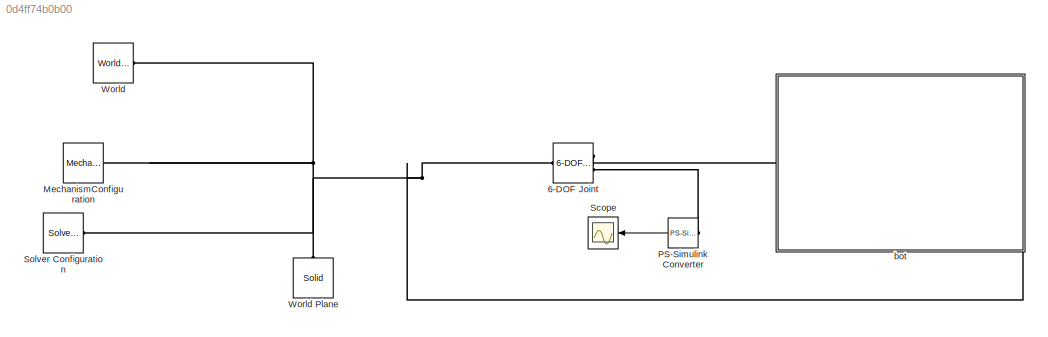
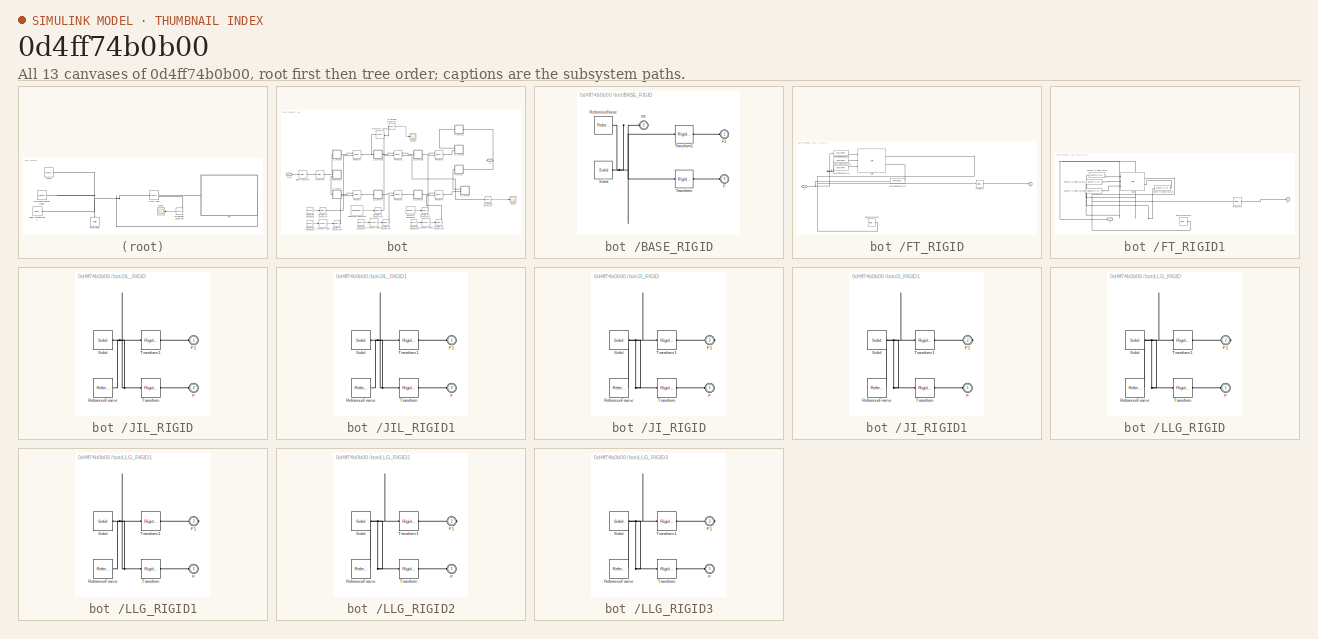
[diagram: thumbnail index - all 13 canvases of the model, root first then tree order]
MODEL slx_0d4ff74b0b00
KIND model
CONFIG AbsTol = 1e-6
CONFIG EnableMultiTasking = off
CONFIG FixedStep = 0.0001
CONFIG MaxStep = 1e-3
CONFIG MinStep = auto
CONFIG RelTol = 1e-5
CONFIG SampleTimeConstraint = Unconstrained
CONFIG Solver = ode15s
CONFIG SolverName = ode15s
CONFIG StartTime = 0.0
CONFIG StopTime = 10.0
WORKSPACE source: external: MAT-File  (data not in archive)
BLOCK [Reference] 6-DOF Joint  REF=sm_lib/Joints/6-DOF Joint
  Ports = [0, 0, 0, 0, 0, 1, 2]
  SourceBlock = sm_lib/Joints/6-DOF Joint
  SourceProductBaseCode = MS
  SourceProductName = Simscape Multibody
  SourceType = 6-DOF Joint
BLOCK [Reference] MechanismConfiguration  REF=sm_lib/Utilities/Mechanism
Configuration
  Ports = [0, 0, 0, 0, 0, 0, 1]
  SourceBlock = sm_lib/Utilities/Mechanism\nConfiguration
  SourceProductBaseCode = MS
  SourceProductName = Simscape Multibody
  SourceType = Mechanism\nConfiguration
BLOCK [Reference] PS-Simulink Converter  REF=nesl_utility/PS-Simulink
Converter
  Ports = [0, 1, 0, 0, 0, 1]
  SourceBlock = nesl_utility/PS-Simulink\nConverter
  SourceProductBaseCode = SS
  SourceProductName = Simscape
  SourceType = PS-Simulink\nConverter
BLOCK [Scope] Scope
  NumInputPorts = 1
  Ports = [1]
  ScopeSpecificationString = Simulink.scopes.TimeScopeBlockCfg('CurrentConfiguration', extmgr.ConfigurationSet(extmgr.Configuration('Core','General UI',true),extmgr.Configuration('Core','Source UI',true),extmgr.Configuration('Sources','WiredSimulink',true,'DataLoggingVariableName','ScopeData1'),extmgr.Configuration('Visuals','Time Domain',true,'SerializedDisplays',{struct('MinYLimReal','-2.59793','MaxYLimReal','0.87486','YLab...<+1380ch>
BLOCK [Reference] Solver Configuration  REF=nesl_utility/Solver
Configuration
  Ports = [0, 0, 0, 0, 0, 0, 1]
  SourceBlock = nesl_utility/Solver\nConfiguration
  SourceProductBaseCode = SS
  SourceProductName = Simscape
  SourceType = Solver\nConfiguration
BLOCK [Reference] World  REF=sm_lib/Frames and
Transforms/World Frame
  Ports = [0, 0, 0, 0, 0, 0, 1]
  SourceBlock = sm_lib/Frames and\nTransforms/World Frame
  SourceProductBaseCode = MS
  SourceProductName = Simscape Multibody
  SourceType = World Frame
BLOCK [Reference] World Plane  REF=sm_lib/Body Elements/Solid
  Ports = [0, 0, 0, 0, 0, 0, 1]
  SourceBlock = sm_lib/Body Elements/Solid
  SourceProductBaseCode = MS
  SourceProductName = Simscape Multibody
  SourceType = Solid
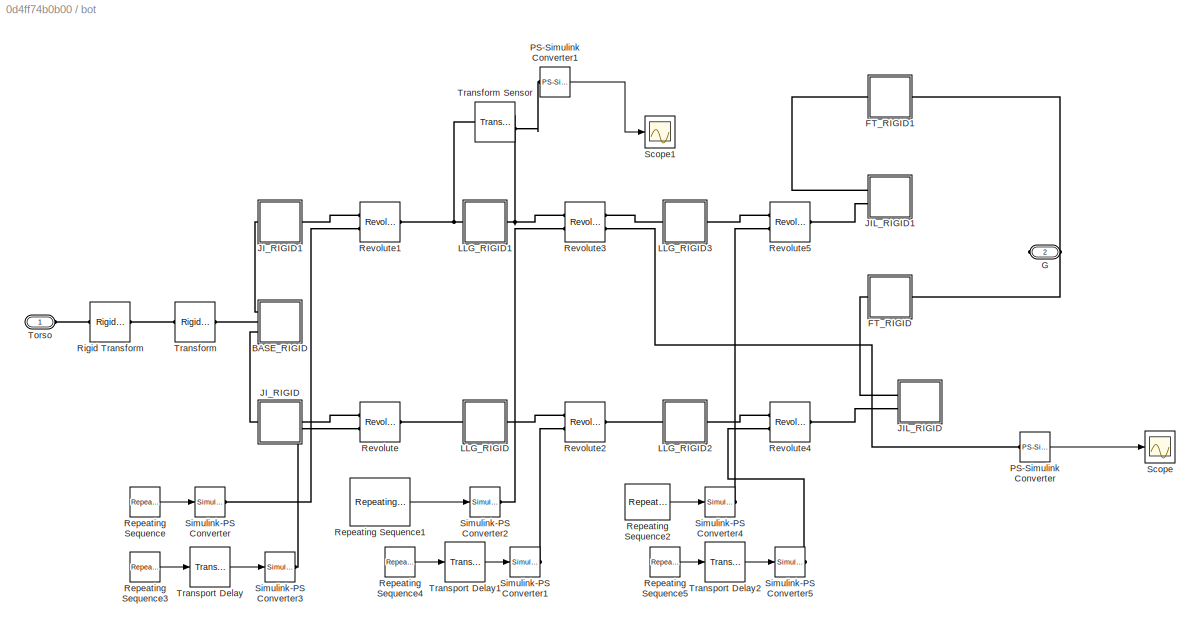
BLOCK [SubSystem] bot 
  Ports = [0, 0, 0, 0, 0, 1, 1]
  RequestExecContextInheritance = off
  Variant = off
BLOCK [SubSystem] bot /BASE_RIGID
  Ports = [0, 0, 0, 0, 0, 3]
  RequestExecContextInheritance = off
  Variant = off
BLOCK [PMIOPort] bot /BASE_RIGID/F
  Port = 3
  Side = Left
BLOCK [PMIOPort] bot /BASE_RIGID/F1
  Port = 1
  Side = Left
BLOCK [PMIOPort] bot /BASE_RIGID/F2
  Port = 2
  Side = Left
BLOCK [Reference] bot /BASE_RIGID/ReferenceFrame  REF=sm_lib/Frames and
Transforms/Reference
Frame
  Ports = [0, 0, 0, 0, 0, 0, 1]
  SourceBlock = sm_lib/Frames and\nTransforms/Reference\nFrame
  SourceProductBaseCode = MS
  SourceProductName = Simscape Multibody
  SourceType = Reference\nFrame
BLOCK [Reference] bot /BASE_RIGID/Solid  REF=sm_lib/Body Elements/Solid
  Ports = [0, 0, 0, 0, 0, 0, 1]
  SourceBlock = sm_lib/Body Elements/Solid
  SourceProductBaseCode = MS
  SourceProductName = Simscape Multibody
  SourceType = Solid
BLOCK [Reference] bot /BASE_RIGID/Transform  REF=sm_lib/Frames and
Transforms/Rigid
Transform
  Ports = [0, 0, 0, 0, 0, 1, 1]
  SourceBlock = sm_lib/Frames and\nTransforms/Rigid\nTransform
  SourceProductBaseCode = MS
  SourceProductName = Simscape Multibody
  SourceType = Rigid\nTransform
BLOCK [Reference] bot /BASE_RIGID/Transform1  REF=sm_lib/Frames and
Transforms/Rigid
Transform
  Ports = [0, 0, 0, 0, 0, 1, 1]
  SourceBlock = sm_lib/Frames and\nTransforms/Rigid\nTransform
  SourceProductBaseCode = MS
  SourceProductName = Simscape Multibody
  SourceType = Rigid\nTransform
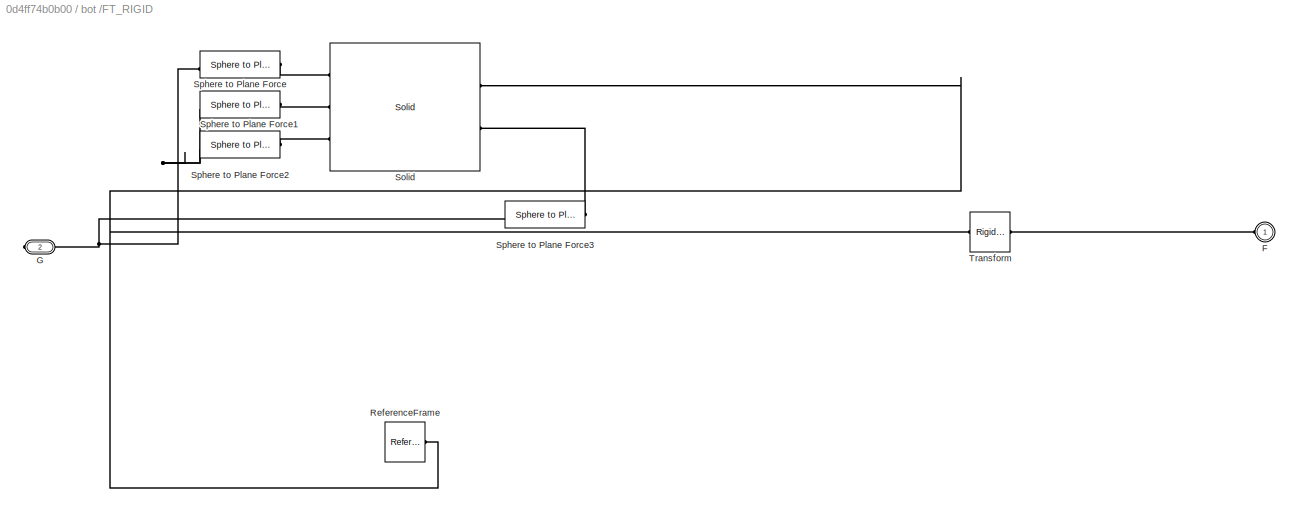
BLOCK [SubSystem] bot /FT_RIGID
  Ports = [0, 0, 0, 0, 0, 1, 1]
  RequestExecContextInheritance = off
  Variant = off
BLOCK [PMIOPort] bot /FT_RIGID/F
  Port = 1
  Side = Left
BLOCK [PMIOPort] bot /FT_RIGID/G
  Port = 2
  Side = Right
BLOCK [Reference] bot /FT_RIGID/ReferenceFrame  REF=sm_lib/Frames and
Transforms/Reference
Frame
  Ports = [0, 0, 0, 0, 0, 0, 1]
  SourceBlock = sm_lib/Frames and\nTransforms/Reference\nFrame
  SourceProductBaseCode = MS
  SourceProductName = Simscape Multibody
  SourceType = Reference\nFrame
BLOCK [Reference] bot /FT_RIGID/Solid  REF=sm_lib/Body Elements/Solid
  Ports = [0, 0, 0, 0, 0, 3, 2]
  SourceBlock = sm_lib/Body Elements/Solid
  SourceProductBaseCode = MS
  SourceProductName = Simscape Multibody
  SourceType = Solid
BLOCK [Reference] bot /FT_RIGID/Sphere to Plane Force  REF=Contact_Forces_Lib/3D/Sphere to Plane Force
  Ports = [0, 1, 0, 0, 0, 1, 1]
  SourceBlock = Contact_Forces_Lib/3D/Sphere to Plane Force
  SourceType = Sphere to Plane Force
BLOCK [Reference] bot /FT_RIGID/Sphere to Plane Force1  REF=Contact_Forces_Lib/3D/Sphere to Plane Force
  Ports = [0, 1, 0, 0, 0, 1, 1]
  SourceBlock = Contact_Forces_Lib/3D/Sphere to Plane Force
  SourceType = Sphere to Plane Force
BLOCK [Reference] bot /FT_RIGID/Sphere to Plane Force2  REF=Contact_Forces_Lib/3D/Sphere to Plane Force
  Ports = [0, 1, 0, 0, 0, 1, 1]
  SourceBlock = Contact_Forces_Lib/3D/Sphere to Plane Force
  SourceType = Sphere to Plane Force
BLOCK [Reference] bot /FT_RIGID/Sphere to Plane Force3  REF=Contact_Forces_Lib/3D/Sphere to Plane Force
  Ports = [0, 1, 0, 0, 0, 1, 1]
  SourceBlock = Contact_Forces_Lib/3D/Sphere to Plane Force
  SourceType = Sphere to Plane Force
BLOCK [Reference] bot /FT_RIGID/Transform  REF=sm_lib/Frames and
Transforms/Rigid
Transform
  Ports = [0, 0, 0, 0, 0, 1, 1]
  SourceBlock = sm_lib/Frames and\nTransforms/Rigid\nTransform
  SourceProductBaseCode = MS
  SourceProductName = Simscape Multibody
  SourceType = Rigid\nTransform
BLOCK [SubSystem] bot /FT_RIGID1
  Ports = [0, 0, 0, 0, 0, 1, 1]
  RequestExecContextInheritance = off
  Variant = off
BLOCK [PMIOPort] bot /FT_RIGID1/F
  Port = 1
  Side = Left
BLOCK [PMIOPort] bot /FT_RIGID1/G
  Port = 2
  Side = Right
BLOCK [Reference] bot /FT_RIGID1/ReferenceFrame  REF=sm_lib/Frames and
Transforms/Reference
Frame
  Ports = [0, 0, 0, 0, 0, 0, 1]
  SourceBlock = sm_lib/Frames and\nTransforms/Reference\nFrame
  SourceProductBaseCode = MS
  SourceProductName = Simscape Multibody
  SourceType = Reference\nFrame
BLOCK [Reference] bot /FT_RIGID1/Solid  REF=sm_lib/Body Elements/Solid
  Ports = [0, 0, 0, 0, 0, 3, 2]
  SourceBlock = sm_lib/Body Elements/Solid
  SourceProductBaseCode = MS
  SourceProductName = Simscape Multibody
  SourceType = Solid
BLOCK [Reference] bot /FT_RIGID1/Sphere to Plane Force  REF=Contact_Forces_Lib/3D/Sphere to Plane Force
  Ports = [0, 1, 0, 0, 0, 1, 1]
  SourceBlock = Contact_Forces_Lib/3D/Sphere to Plane Force
  SourceType = Sphere to Plane Force
BLOCK [Reference] bot /FT_RIGID1/Sphere to Plane Force1  REF=Contact_Forces_Lib/3D/Sphere to Plane Force
  Ports = [0, 1, 0, 0, 0, 1, 1]
  SourceBlock = Contact_Forces_Lib/3D/Sphere to Plane Force
  SourceType = Sphere to Plane Force
BLOCK [Reference] bot /FT_RIGID1/Sphere to Plane Force2  REF=Contact_Forces_Lib/3D/Sphere to Plane Force
  Ports = [0, 1, 0, 0, 0, 1, 1]
  SourceBlock = Contact_Forces_Lib/3D/Sphere to Plane Force
  SourceType = Sphere to Plane Force
BLOCK [Reference] bot /FT_RIGID1/Sphere to Plane Force3  REF=Contact_Forces_Lib/3D/Sphere to Plane Force
  Ports = [0, 1, 0, 0, 0, 1, 1]
  SourceBlock = Contact_Forces_Lib/3D/Sphere to Plane Force
  SourceType = Sphere to Plane Force
BLOCK [Reference] bot /FT_RIGID1/Transform  REF=sm_lib/Frames and
Transforms/Rigid
Transform
  Ports = [0, 0, 0, 0, 0, 1, 1]
  SourceBlock = sm_lib/Frames and\nTransforms/Rigid\nTransform
  SourceProductBaseCode = MS
  SourceProductName = Simscape Multibody
  SourceType = Rigid\nTransform
BLOCK [PMIOPort] bot /G
  Port = 2
  Side = Right
BLOCK [SubSystem] bot /JIL_RIGID
  Ports = [0, 0, 0, 0, 0, 2]
  RequestExecContextInheritance = off
  Variant = off
BLOCK [PMIOPort] bot /JIL_RIGID/F
  Port = 2
  Side = Left
BLOCK [PMIOPort] bot /JIL_RIGID/F1
  Port = 1
  Side = Left
BLOCK [Reference] bot /JIL_RIGID/ReferenceFrame  REF=sm_lib/Frames and
Transforms/Reference
Frame
  Ports = [0, 0, 0, 0, 0, 0, 1]
  SourceBlock = sm_lib/Frames and\nTransforms/Reference\nFrame
  SourceProductBaseCode = MS
  SourceProductName = Simscape Multibody
  SourceType = Reference\nFrame
BLOCK [Reference] bot /JIL_RIGID/Solid  REF=sm_lib/Body Elements/Solid
  Ports = [0, 0, 0, 0, 0, 0, 1]
  SourceBlock = sm_lib/Body Elements/Solid
  SourceProductBaseCode = MS
  SourceProductName = Simscape Multibody
  SourceType = Solid
BLOCK [Reference] bot /JIL_RIGID/Transform  REF=sm_lib/Frames and
Transforms/Rigid
Transform
  Ports = [0, 0, 0, 0, 0, 1, 1]
  SourceBlock = sm_lib/Frames and\nTransforms/Rigid\nTransform
  SourceProductBaseCode = MS
  SourceProductName = Simscape Multibody
  SourceType = Rigid\nTransform
BLOCK [Reference] bot /JIL_RIGID/Transform1  REF=sm_lib/Frames and
Transforms/Rigid
Transform
  Ports = [0, 0, 0, 0, 0, 1, 1]
  SourceBlock = sm_lib/Frames and\nTransforms/Rigid\nTransform
  SourceProductBaseCode = MS
  SourceProductName = Simscape Multibody
  SourceType = Rigid\nTransform
BLOCK [SubSystem] bot /JIL_RIGID1
  Ports = [0, 0, 0, 0, 0, 2]
  RequestExecContextInheritance = off
  Variant = off
BLOCK [PMIOPort] bot /JIL_RIGID1/F
  Port = 2
  Side = Left
BLOCK [PMIOPort] bot /JIL_RIGID1/F1
  Port = 1
  Side = Left
BLOCK [Reference] bot /JIL_RIGID1/ReferenceFrame  REF=sm_lib/Frames and
Transforms/Reference
Frame
  Ports = [0, 0, 0, 0, 0, 0, 1]
  SourceBlock = sm_lib/Frames and\nTransforms/Reference\nFrame
  SourceProductBaseCode = MS
  SourceProductName = Simscape Multibody
  SourceType = Reference\nFrame
BLOCK [Reference] bot /JIL_RIGID1/Solid  REF=sm_lib/Body Elements/Solid
  Ports = [0, 0, 0, 0, 0, 0, 1]
  SourceBlock = sm_lib/Body Elements/Solid
  SourceProductBaseCode = MS
  SourceProductName = Simscape Multibody
  SourceType = Solid
BLOCK [Reference] bot /JIL_RIGID1/Transform  REF=sm_lib/Frames and
Transforms/Rigid
Transform
  Ports = [0, 0, 0, 0, 0, 1, 1]
  SourceBlock = sm_lib/Frames and\nTransforms/Rigid\nTransform
  SourceProductBaseCode = MS
  SourceProductName = Simscape Multibody
  SourceType = Rigid\nTransform
BLOCK [Reference] bot /JIL_RIGID1/Transform1  REF=sm_lib/Frames and
Transforms/Rigid
Transform
  Ports = [0, 0, 0, 0, 0, 1, 1]
  SourceBlock = sm_lib/Frames and\nTransforms/Rigid\nTransform
  SourceProductBaseCode = MS
  SourceProductName = Simscape Multibody
  SourceType = Rigid\nTransform
BLOCK [SubSystem] bot /JI_RIGID
  Ports = [0, 0, 0, 0, 0, 1, 1]
  RequestExecContextInheritance = off
  Variant = off
BLOCK [PMIOPort] bot /JI_RIGID/F
  Port = 1
  Side = Left
BLOCK [PMIOPort] bot /JI_RIGID/F1
  Port = 2
  Side = Right
BLOCK [Reference] bot /JI_RIGID/ReferenceFrame  REF=sm_lib/Frames and
Transforms/Reference
Frame
  Ports = [0, 0, 0, 0, 0, 0, 1]
  SourceBlock = sm_lib/Frames and\nTransforms/Reference\nFrame
  SourceProductBaseCode = MS
  SourceProductName = Simscape Multibody
  SourceType = Reference\nFrame
BLOCK [Reference] bot /JI_RIGID/Solid  REF=sm_lib/Body Elements/Solid
  Ports = [0, 0, 0, 0, 0, 0, 1]
  SourceBlock = sm_lib/Body Elements/Solid
  SourceProductBaseCode = MS
  SourceProductName = Simscape Multibody
  SourceType = Solid
BLOCK [Reference] bot /JI_RIGID/Transform  REF=sm_lib/Frames and
Transforms/Rigid
Transform
  Ports = [0, 0, 0, 0, 0, 1, 1]
  SourceBlock = sm_lib/Frames and\nTransforms/Rigid\nTransform
  SourceProductBaseCode = MS
  SourceProductName = Simscape Multibody
  SourceType = Rigid\nTransform
BLOCK [Reference] bot /JI_RIGID/Transform1  REF=sm_lib/Frames and
Transforms/Rigid
Transform
  Ports = [0, 0, 0, 0, 0, 1, 1]
  SourceBlock = sm_lib/Frames and\nTransforms/Rigid\nTransform
  SourceProductBaseCode = MS
  SourceProductName = Simscape Multibody
  SourceType = Rigid\nTransform
BLOCK [SubSystem] bot /JI_RIGID1
  Ports = [0, 0, 0, 0, 0, 1, 1]
  RequestExecContextInheritance = off
  Variant = off
BLOCK [PMIOPort] bot /JI_RIGID1/F
  Port = 1
  Side = Left
BLOCK [PMIOPort] bot /JI_RIGID1/F1
  Port = 2
  Side = Right
BLOCK [Reference] bot /JI_RIGID1/ReferenceFrame  REF=sm_lib/Frames and
Transforms/Reference
Frame
  Ports = [0, 0, 0, 0, 0, 0, 1]
  SourceBlock = sm_lib/Frames and\nTransforms/Reference\nFrame
  SourceProductBaseCode = MS
  SourceProductName = Simscape Multibody
  SourceType = Reference\nFrame
BLOCK [Reference] bot /JI_RIGID1/Solid  REF=sm_lib/Body Elements/Solid
  Ports = [0, 0, 0, 0, 0, 0, 1]
  SourceBlock = sm_lib/Body Elements/Solid
  SourceProductBaseCode = MS
  SourceProductName = Simscape Multibody
  SourceType = Solid
BLOCK [Reference] bot /JI_RIGID1/Transform  REF=sm_lib/Frames and
Transforms/Rigid
Transform
  Ports = [0, 0, 0, 0, 0, 1, 1]
  SourceBlock = sm_lib/Frames and\nTransforms/Rigid\nTransform
  SourceProductBaseCode = MS
  SourceProductName = Simscape Multibody
  SourceType = Rigid\nTransform
BLOCK [Reference] bot /JI_RIGID1/Transform1  REF=sm_lib/Frames and
Transforms/Rigid
Transform
  Ports = [0, 0, 0, 0, 0, 1, 1]
  SourceBlock = sm_lib/Frames and\nTransforms/Rigid\nTransform
  SourceProductBaseCode = MS
  SourceProductName = Simscape Multibody
  SourceType = Rigid\nTransform
BLOCK [SubSystem] bot /LLG_RIGID
  Ports = [0, 0, 0, 0, 0, 1, 1]
  RequestExecContextInheritance = off
  Variant = off
BLOCK [PMIOPort] bot /LLG_RIGID/F
  Port = 1
  Side = Left
BLOCK [PMIOPort] bot /LLG_RIGID/F1
  Port = 2
  Side = Right
BLOCK [Reference] bot /LLG_RIGID/ReferenceFrame  REF=sm_lib/Frames and
Transforms/Reference
Frame
  Ports = [0, 0, 0, 0, 0, 0, 1]
  SourceBlock = sm_lib/Frames and\nTransforms/Reference\nFrame
  SourceProductBaseCode = MS
  SourceProductName = Simscape Multibody
  SourceType = Reference\nFrame
BLOCK [Reference] bot /LLG_RIGID/Solid  REF=sm_lib/Body Elements/Solid
  Ports = [0, 0, 0, 0, 0, 0, 1]
  SourceBlock = sm_lib/Body Elements/Solid
  SourceProductBaseCode = MS
  SourceProductName = Simscape Multibody
  SourceType = Solid
BLOCK [Reference] bot /LLG_RIGID/Transform  REF=sm_lib/Frames and
Transforms/Rigid
Transform
  Ports = [0, 0, 0, 0, 0, 1, 1]
  SourceBlock = sm_lib/Frames and\nTransforms/Rigid\nTransform
  SourceProductBaseCode = MS
  SourceProductName = Simscape Multibody
  SourceType = Rigid\nTransform
BLOCK [Reference] bot /LLG_RIGID/Transform1  REF=sm_lib/Frames and
Transforms/Rigid
Transform
  Ports = [0, 0, 0, 0, 0, 1, 1]
  SourceBlock = sm_lib/Frames and\nTransforms/Rigid\nTransform
  SourceProductBaseCode = MS
  SourceProductName = Simscape Multibody
  SourceType = Rigid\nTransform
BLOCK [SubSystem] bot /LLG_RIGID1
  Ports = [0, 0, 0, 0, 0, 1, 1]
  RequestExecContextInheritance = off
  Variant = off
BLOCK [PMIOPort] bot /LLG_RIGID1/F
  Port = 1
  Side = Left
BLOCK [PMIOPort] bot /LLG_RIGID1/F1
  Port = 2
  Side = Right
BLOCK [Reference] bot /LLG_RIGID1/ReferenceFrame  REF=sm_lib/Frames and
Transforms/Reference
Frame
  Ports = [0, 0, 0, 0, 0, 0, 1]
  SourceBlock = sm_lib/Frames and\nTransforms/Reference\nFrame
  SourceProductBaseCode = MS
  SourceProductName = Simscape Multibody
  SourceType = Reference\nFrame
BLOCK [Reference] bot /LLG_RIGID1/Solid  REF=sm_lib/Body Elements/Solid
  Ports = [0, 0, 0, 0, 0, 0, 1]
  SourceBlock = sm_lib/Body Elements/Solid
  SourceProductBaseCode = MS
  SourceProductName = Simscape Multibody
  SourceType = Solid
BLOCK [Reference] bot /LLG_RIGID1/Transform  REF=sm_lib/Frames and
Transforms/Rigid
Transform
  Ports = [0, 0, 0, 0, 0, 1, 1]
  SourceBlock = sm_lib/Frames and\nTransforms/Rigid\nTransform
  SourceProductBaseCode = MS
  SourceProductName = Simscape Multibody
  SourceType = Rigid\nTransform
BLOCK [Reference] bot /LLG_RIGID1/Transform1  REF=sm_lib/Frames and
Transforms/Rigid
Transform
  Ports = [0, 0, 0, 0, 0, 1, 1]
  SourceBlock = sm_lib/Frames and\nTransforms/Rigid\nTransform
  SourceProductBaseCode = MS
  SourceProductName = Simscape Multibody
  SourceType = Rigid\nTransform
BLOCK [SubSystem] bot /LLG_RIGID2
  Ports = [0, 0, 0, 0, 0, 1, 1]
  RequestExecContextInheritance = off
  Variant = off
BLOCK [PMIOPort] bot /LLG_RIGID2/F
  Port = 1
  Side = Left
BLOCK [PMIOPort] bot /LLG_RIGID2/F1
  Port = 2
  Side = Right
BLOCK [Reference] bot /LLG_RIGID2/ReferenceFrame  REF=sm_lib/Frames and
Transforms/Reference
Frame
  Ports = [0, 0, 0, 0, 0, 0, 1]
  SourceBlock = sm_lib/Frames and\nTransforms/Reference\nFrame
  SourceProductBaseCode = MS
  SourceProductName = Simscape Multibody
  SourceType = Reference\nFrame
BLOCK [Reference] bot /LLG_RIGID2/Solid  REF=sm_lib/Body Elements/Solid
  Ports = [0, 0, 0, 0, 0, 0, 1]
  SourceBlock = sm_lib/Body Elements/Solid
  SourceProductBaseCode = MS
  SourceProductName = Simscape Multibody
  SourceType = Solid
BLOCK [Reference] bot /LLG_RIGID2/Transform  REF=sm_lib/Frames and
Transforms/Rigid
Transform
  Ports = [0, 0, 0, 0, 0, 1, 1]
  SourceBlock = sm_lib/Frames and\nTransforms/Rigid\nTransform
  SourceProductBaseCode = MS
  SourceProductName = Simscape Multibody
  SourceType = Rigid\nTransform
BLOCK [Reference] bot /LLG_RIGID2/Transform1  REF=sm_lib/Frames and
Transforms/Rigid
Transform
  Ports = [0, 0, 0, 0, 0, 1, 1]
  SourceBlock = sm_lib/Frames and\nTransforms/Rigid\nTransform
  SourceProductBaseCode = MS
  SourceProductName = Simscape Multibody
  SourceType = Rigid\nTransform
BLOCK [SubSystem] bot /LLG_RIGID3
  Ports = [0, 0, 0, 0, 0, 1, 1]
  RequestExecContextInheritance = off
  Variant = off
BLOCK [PMIOPort] bot /LLG_RIGID3/F
  Port = 1
  Side = Left
BLOCK [PMIOPort] bot /LLG_RIGID3/F1
  Port = 2
  Side = Right
BLOCK [Reference] bot /LLG_RIGID3/ReferenceFrame  REF=sm_lib/Frames and
Transforms/Reference
Frame
  Ports = [0, 0, 0, 0, 0, 0, 1]
  SourceBlock = sm_lib/Frames and\nTransforms/Reference\nFrame
  SourceProductBaseCode = MS
  SourceProductName = Simscape Multibody
  SourceType = Reference\nFrame
BLOCK [Reference] bot /LLG_RIGID3/Solid  REF=sm_lib/Body Elements/Solid
  Ports = [0, 0, 0, 0, 0, 0, 1]
  SourceBlock = sm_lib/Body Elements/Solid
  SourceProductBaseCode = MS
  SourceProductName = Simscape Multibody
  SourceType = Solid
BLOCK [Reference] bot /LLG_RIGID3/Transform  REF=sm_lib/Frames and
Transforms/Rigid
Transform
  Ports = [0, 0, 0, 0, 0, 1, 1]
  SourceBlock = sm_lib/Frames and\nTransforms/Rigid\nTransform
  SourceProductBaseCode = MS
  SourceProductName = Simscape Multibody
  SourceType = Rigid\nTransform
BLOCK [Reference] bot /LLG_RIGID3/Transform1  REF=sm_lib/Frames and
Transforms/Rigid
Transform
  Ports = [0, 0, 0, 0, 0, 1, 1]
  SourceBlock = sm_lib/Frames and\nTransforms/Rigid\nTransform
  SourceProductBaseCode = MS
  SourceProductName = Simscape Multibody
  SourceType = Rigid\nTransform
BLOCK [Reference] bot /PS-Simulink Converter  REF=nesl_utility/PS-Simulink
Converter
  Ports = [0, 1, 0, 0, 0, 1]
  SourceBlock = nesl_utility/PS-Simulink\nConverter
  SourceProductBaseCode = SS
  SourceProductName = Simscape
  SourceType = PS-Simulink\nConverter
BLOCK [Reference] bot /PS-Simulink Converter1  REF=nesl_utility/PS-Simulink
Converter
  Commented = on
  Ports = [0, 1, 0, 0, 0, 1]
  SourceBlock = nesl_utility/PS-Simulink\nConverter
  SourceProductBaseCode = SS
  SourceProductName = Simscape
  SourceType = PS-Simulink\nConverter
BLOCK [Reference] bot /Repeating Sequence  REF=simulink/Sources/Repeating
Sequence
  Ports = [0, 1]
  SourceBlock = simulink/Sources/Repeating\nSequence
  SourceProductBaseCode = SL
  SourceProductName = Simulink
  SourceType = Repeating table
BLOCK [Reference] bot /Repeating Sequence1  REF=simulink/Sources/Repeating
Sequence
  Ports = [0, 1]
  SourceBlock = simulink/Sources/Repeating\nSequence
  SourceProductBaseCode = SL
  SourceProductName = Simulink
  SourceType = Repeating table
BLOCK [Reference] bot /Repeating Sequence2  REF=simulink/Sources/Repeating
Sequence
  Ports = [0, 1]
  SourceBlock = simulink/Sources/Repeating\nSequence
  SourceProductBaseCode = SL
  SourceProductName = Simulink
  SourceType = Repeating table
BLOCK [Reference] bot /Repeating Sequence3  REF=simulink/Sources/Repeating
Sequence
  Ports = [0, 1]
  SourceBlock = simulink/Sources/Repeating\nSequence
  SourceProductBaseCode = SL
  SourceProductName = Simulink
  SourceType = Repeating table
BLOCK [Reference] bot /Repeating Sequence4  REF=simulink/Sources/Repeating
Sequence
  Ports = [0, 1]
  SourceBlock = simulink/Sources/Repeating\nSequence
  SourceProductBaseCode = SL
  SourceProductName = Simulink
  SourceType = Repeating table
BLOCK [Reference] bot /Repeating Sequence5  REF=simulink/Sources/Repeating
Sequence
  Ports = [0, 1]
  SourceBlock = simulink/Sources/Repeating\nSequence
  SourceProductBaseCode = SL
  SourceProductName = Simulink
  SourceType = Repeating table
BLOCK [Reference] bot /Revolute  REF=sm_lib/Joints/Revolute Joint
  Ports = [0, 0, 0, 0, 0, 2, 1]
  SourceBlock = sm_lib/Joints/Revolute Joint
  SourceProductBaseCode = MS
  SourceProductName = Simscape Multibody
  SourceType = Revolute Joint
BLOCK [Reference] bot /Revolute1  REF=sm_lib/Joints/Revolute Joint
  Ports = [0, 0, 0, 0, 0, 2, 1]
  SourceBlock = sm_lib/Joints/Revolute Joint
  SourceProductBaseCode = MS
  SourceProductName = Simscape Multibody
  SourceType = Revolute Joint
BLOCK [Reference] bot /Revolute2  REF=sm_lib/Joints/Revolute Joint
  Ports = [0, 0, 0, 0, 0, 2, 1]
  SourceBlock = sm_lib/Joints/Revolute Joint
  SourceProductBaseCode = MS
  SourceProductName = Simscape Multibody
  SourceType = Revolute Joint
BLOCK [Reference] bot /Revolute3  REF=sm_lib/Joints/Revolute Joint
  Ports = [0, 0, 0, 0, 0, 2, 2]
  SourceBlock = sm_lib/Joints/Revolute Joint
  SourceProductBaseCode = MS
  SourceProductName = Simscape Multibody
  SourceType = Revolute Joint
BLOCK [Reference] bot /Revolute4  REF=sm_lib/Joints/Revolute Joint
  Ports = [0, 0, 0, 0, 0, 2, 1]
  SourceBlock = sm_lib/Joints/Revolute Joint
  SourceProductBaseCode = MS
  SourceProductName = Simscape Multibody
  SourceType = Revolute Joint
BLOCK [Reference] bot /Revolute5  REF=sm_lib/Joints/Revolute Joint
  Ports = [0, 0, 0, 0, 0, 2, 1]
  SourceBlock = sm_lib/Joints/Revolute Joint
  SourceProductBaseCode = MS
  SourceProductName = Simscape Multibody
  SourceType = Revolute Joint
BLOCK [Reference] bot /Rigid Transform  REF=sm_lib/Frames and
Transforms/Rigid
Transform
  Ports = [0, 0, 0, 0, 0, 1, 1]
  SourceBlock = sm_lib/Frames and\nTransforms/Rigid\nTransform
  SourceProductBaseCode = MS
  SourceProductName = Simscape Multibody
  SourceType = Rigid\nTransform
BLOCK [Scope] bot /Scope
  NumInputPorts = 1
  Ports = [1]
  ScopeSpecificationString = Simulink.scopes.TimeScopeBlockCfg('CurrentConfiguration', extmgr.ConfigurationSet(extmgr.Configuration('Core','General UI',true),extmgr.Configuration('Core','Source UI',true),extmgr.Configuration('Sources','WiredSimulink',true),extmgr.Configuration('Visuals','Time Domain',true,'SerializedDisplays',{struct('MinYLimReal','-11465764908.79377','MaxYLimReal','46839913215.40419','YLabelReal','','MinYLim...<+1473ch>
BLOCK [Scope] bot /Scope1
  Commented = on
  NumInputPorts = 1
  Ports = [1]
  ScopeSpecificationString = Simulink.scopes.TimeScopeBlockCfg('CurrentConfiguration', extmgr.ConfigurationSet(extmgr.Configuration('Core','General UI',true),extmgr.Configuration('Core','Source UI',true),extmgr.Configuration('Sources','WiredSimulink',true,'DataLoggingVariableName','ScopeData1'),extmgr.Configuration('Visuals','Time Domain',true,'SerializedDisplays',{struct('MinYLimReal','-0.000005','MaxYLimReal','0.000041','YL...<+1389ch>
BLOCK [Reference] bot /Simulink-PS Converter  REF=nesl_utility/Simulink-PS
Converter
  Ports = [1, 0, 0, 0, 0, 0, 1]
  SourceBlock = nesl_utility/Simulink-PS\nConverter
  SourceProductBaseCode = SS
  SourceProductName = Simscape
  SourceType = Simulink-PS\nConverter
BLOCK [Reference] bot /Simulink-PS Converter1  REF=nesl_utility/Simulink-PS
Converter
  Ports = [1, 0, 0, 0, 0, 0, 1]
  SourceBlock = nesl_utility/Simulink-PS\nConverter
  SourceProductBaseCode = SS
  SourceProductName = Simscape
  SourceType = Simulink-PS\nConverter
BLOCK [Reference] bot /Simulink-PS Converter2  REF=nesl_utility/Simulink-PS
Converter
  Ports = [1, 0, 0, 0, 0, 0, 1]
  SourceBlock = nesl_utility/Simulink-PS\nConverter
  SourceProductBaseCode = SS
  SourceProductName = Simscape
  SourceType = Simulink-PS\nConverter
BLOCK [Reference] bot /Simulink-PS Converter3  REF=nesl_utility/Simulink-PS
Converter
  Ports = [1, 0, 0, 0, 0, 0, 1]
  SourceBlock = nesl_utility/Simulink-PS\nConverter
  SourceProductBaseCode = SS
  SourceProductName = Simscape
  SourceType = Simulink-PS\nConverter
BLOCK [Reference] bot /Simulink-PS Converter4  REF=nesl_utility/Simulink-PS
Converter
  Ports = [1, 0, 0, 0, 0, 0, 1]
  SourceBlock = nesl_utility/Simulink-PS\nConverter
  SourceProductBaseCode = SS
  SourceProductName = Simscape
  SourceType = Simulink-PS\nConverter
BLOCK [Reference] bot /Simulink-PS Converter5  REF=nesl_utility/Simulink-PS
Converter
  Ports = [1, 0, 0, 0, 0, 0, 1]
  SourceBlock = nesl_utility/Simulink-PS\nConverter
  SourceProductBaseCode = SS
  SourceProductName = Simscape
  SourceType = Simulink-PS\nConverter
BLOCK [PMIOPort] bot /Torso 
  Port = 1
  Side = Left
BLOCK [Reference] bot /Transform  REF=sm_lib/Frames and
Transforms/Rigid
Transform
  Ports = [0, 0, 0, 0, 0, 1, 1]
  SourceBlock = sm_lib/Frames and\nTransforms/Rigid\nTransform
  SourceProductBaseCode = MS
  SourceProductName = Simscape Multibody
  SourceType = Rigid\nTransform
BLOCK [Reference] bot /Transform Sensor  REF=sm_lib/Frames and
Transforms/Transform
Sensor
  Commented = on
  Ports = [0, 0, 0, 0, 0, 1, 2]
  SourceBlock = sm_lib/Frames and\nTransforms/Transform\nSensor
  SourceProductBaseCode = MS
  SourceProductName = Simscape Multibody
  SourceType = Transform\nSensor
BLOCK [TransportDelay] bot /Transport Delay
  DelayTime = gaitPeriod/2
  Ports = [1, 1]
BLOCK [TransportDelay] bot /Transport Delay1
  DelayTime = gaitPeriod/2
  Ports = [1, 1]
BLOCK [TransportDelay] bot /Transport Delay2
  DelayTime = gaitPeriod/2
  Ports = [1, 1]
LINE PS-Simulink Converter:1 -> Scope:1
LINE bot /PS-Simulink Converter1:1 -> bot /Scope1:1
LINE bot /PS-Simulink Converter:1 -> bot /Scope:1
LINE bot /Repeating Sequence1:1 -> bot /Simulink-PS Converter2:1
LINE bot /Repeating Sequence2:1 -> bot /Simulink-PS Converter4:1
LINE bot /Repeating Sequence3:1 -> bot /Transport Delay:1
LINE bot /Repeating Sequence4:1 -> bot /Transport Delay1:1
LINE bot /Repeating Sequence5:1 -> bot /Transport Delay2:1
LINE bot /Repeating Sequence:1 -> bot /Simulink-PS Converter:1
LINE bot /Transport Delay1:1 -> bot /Simulink-PS Converter1:1
LINE bot /Transport Delay2:1 -> bot /Simulink-PS Converter5:1
LINE bot /Transport Delay:1 -> bot /Simulink-PS Converter3:1
PNET net1: 6-DOF Joint:LConn1 -- MechanismConfiguration:RConn1 -- Solver Configuration:RConn1 -- World Plane:RConn1 -- World:RConn1 -- bot :RConn1
PLINE 6-DOF Joint:RConn1 -- bot :LConn1
PLINE 6-DOF Joint:RConn2 -- PS-Simulink Converter:LConn1
PLINE bot /BASE_RIGID/F1:RConn1 -- bot /BASE_RIGID/Transform1:RConn1
PNET net2: bot /BASE_RIGID/F2:RConn1 -- bot /BASE_RIGID/ReferenceFrame:RConn1 -- bot /BASE_RIGID/Solid:RConn1 -- bot /BASE_RIGID/Transform1:LConn1 -- bot /BASE_RIGID/Transform:LConn1
PLINE bot /BASE_RIGID/F:RConn1 -- bot /BASE_RIGID/Transform:RConn1
PLINE bot /BASE_RIGID:LConn1 -- bot /JI_RIGID1:LConn1
PLINE bot /BASE_RIGID:LConn2 -- bot /Transform:RConn1
PLINE bot /BASE_RIGID:LConn3 -- bot /JI_RIGID:LConn1
PLINE bot /FT_RIGID/F:RConn1 -- bot /FT_RIGID/Transform:RConn1
PNET net3: bot /FT_RIGID/G:RConn1 -- bot /FT_RIGID/Sphere to Plane Force1:RConn1 -- bot /FT_RIGID/Sphere to Plane Force2:RConn1 -- bot /FT_RIGID/Sphere to Plane Force3:RConn1 -- bot /FT_RIGID/Sphere to Plane Force:RConn1
PNET net4: bot /FT_RIGID/ReferenceFrame:RConn1 -- bot /FT_RIGID/Solid:RConn1 -- bot /FT_RIGID/Transform:LConn1
PLINE bot /FT_RIGID/Solid:LConn1 -- bot /FT_RIGID/Sphere to Plane Force:LConn1
PLINE bot /FT_RIGID/Solid:LConn2 -- bot /FT_RIGID/Sphere to Plane Force1:LConn1
PLINE bot /FT_RIGID/Solid:LConn3 -- bot /FT_RIGID/Sphere to Plane Force2:LConn1
PLINE bot /FT_RIGID/Solid:RConn2 -- bot /FT_RIGID/Sphere to Plane Force3:LConn1
PLINE bot /FT_RIGID1/F:RConn1 -- bot /FT_RIGID1/Transform:RConn1
PNET net5: bot /FT_RIGID1/G:RConn1 -- bot /FT_RIGID1/Sphere to Plane Force1:RConn1 -- bot /FT_RIGID1/Sphere to Plane Force2:RConn1 -- bot /FT_RIGID1/Sphere to Plane Force3:RConn1 -- bot /FT_RIGID1/Sphere to Plane Force:RConn1
PNET net6: bot /FT_RIGID1/ReferenceFrame:RConn1 -- bot /FT_RIGID1/Solid:RConn1 -- bot /FT_RIGID1/Transform:LConn1
PLINE bot /FT_RIGID1/Solid:LConn1 -- bot /FT_RIGID1/Sphere to Plane Force:LConn1
PLINE bot /FT_RIGID1/Solid:LConn2 -- bot /FT_RIGID1/Sphere to Plane Force1:LConn1
PLINE bot /FT_RIGID1/Solid:LConn3 -- bot /FT_RIGID1/Sphere to Plane Force3:LConn1
PLINE bot /FT_RIGID1/Solid:RConn2 -- bot /FT_RIGID1/Sphere to Plane Force2:LConn1
PLINE bot /FT_RIGID1:LConn1 -- bot /JIL_RIGID1:LConn1
PNET net7: bot /FT_RIGID1:RConn1 -- bot /FT_RIGID:RConn1 -- bot /G:RConn1
PLINE bot /FT_RIGID:LConn1 -- bot /JIL_RIGID:LConn1
PLINE bot /JIL_RIGID/F1:RConn1 -- bot /JIL_RIGID/Transform1:RConn1
PLINE bot /JIL_RIGID/F:RConn1 -- bot /JIL_RIGID/Transform:RConn1
PNET net8: bot /JIL_RIGID/ReferenceFrame:RConn1 -- bot /JIL_RIGID/Solid:RConn1 -- bot /JIL_RIGID/Transform1:LConn1 -- bot /JIL_RIGID/Transform:LConn1
PLINE bot /JIL_RIGID1/F1:RConn1 -- bot /JIL_RIGID1/Transform1:RConn1
PLINE bot /JIL_RIGID1/F:RConn1 -- bot /JIL_RIGID1/Transform:RConn1
PNET net9: bot /JIL_RIGID1/ReferenceFrame:RConn1 -- bot /JIL_RIGID1/Solid:RConn1 -- bot /JIL_RIGID1/Transform1:LConn1 -- bot /JIL_RIGID1/Transform:LConn1
PLINE bot /JIL_RIGID1:LConn2 -- bot /Revolute5:RConn1
PLINE bot /JIL_RIGID:LConn2 -- bot /Revolute4:RConn1
PLINE bot /JI_RIGID/F1:RConn1 -- bot /JI_RIGID/Transform1:RConn1
PLINE bot /JI_RIGID/F:RConn1 -- bot /JI_RIGID/Transform:RConn1
PNET net10: bot /JI_RIGID/ReferenceFrame:RConn1 -- bot /JI_RIGID/Solid:RConn1 -- bot /JI_RIGID/Transform1:LConn1 -- bot /JI_RIGID/Transform:LConn1
PLINE bot /JI_RIGID1/F1:RConn1 -- bot /JI_RIGID1/Transform1:RConn1
PLINE bot /JI_RIGID1/F:RConn1 -- bot /JI_RIGID1/Transform:RConn1
PNET net11: bot /JI_RIGID1/ReferenceFrame:RConn1 -- bot /JI_RIGID1/Solid:RConn1 -- bot /JI_RIGID1/Transform1:LConn1 -- bot /JI_RIGID1/Transform:LConn1
PLINE bot /JI_RIGID1:RConn1 -- bot /Revolute1:LConn1
PLINE bot /JI_RIGID:RConn1 -- bot /Revolute:LConn1
PLINE bot /LLG_RIGID/F1:RConn1 -- bot /LLG_RIGID/Transform1:RConn1
PLINE bot /LLG_RIGID/F:RConn1 -- bot /LLG_RIGID/Transform:RConn1
PNET net12: bot /LLG_RIGID/ReferenceFrame:RConn1 -- bot /LLG_RIGID/Solid:RConn1 -- bot /LLG_RIGID/Transform1:LConn1 -- bot /LLG_RIGID/Transform:LConn1
PLINE bot /LLG_RIGID1/F1:RConn1 -- bot /LLG_RIGID1/Transform1:RConn1
PLINE bot /LLG_RIGID1/F:RConn1 -- bot /LLG_RIGID1/Transform:RConn1
PNET net13: bot /LLG_RIGID1/ReferenceFrame:RConn1 -- bot /LLG_RIGID1/Solid:RConn1 -- bot /LLG_RIGID1/Transform1:LConn1 -- bot /LLG_RIGID1/Transform:LConn1
PNET net14: bot /LLG_RIGID1:LConn1 -- bot /Revolute1:RConn1 -- bot /Transform Sensor:LConn1
PNET net15: bot /LLG_RIGID1:RConn1 -- bot /Revolute3:LConn1 -- bot /Transform Sensor:RConn1
PLINE bot /LLG_RIGID2/F1:RConn1 -- bot /LLG_RIGID2/Transform1:RConn1
PLINE bot /LLG_RIGID2/F:RConn1 -- bot /LLG_RIGID2/Transform:RConn1
PNET net16: bot /LLG_RIGID2/ReferenceFrame:RConn1 -- bot /LLG_RIGID2/Solid:RConn1 -- bot /LLG_RIGID2/Transform1:LConn1 -- bot /LLG_RIGID2/Transform:LConn1
PLINE bot /LLG_RIGID2:LConn1 -- bot /Revolute2:RConn1
PLINE bot /LLG_RIGID2:RConn1 -- bot /Revolute4:LConn1
PLINE bot /LLG_RIGID3/F1:RConn1 -- bot /LLG_RIGID3/Transform1:RConn1
PLINE bot /LLG_RIGID3/F:RConn1 -- bot /LLG_RIGID3/Transform:RConn1
PNET net17: bot /LLG_RIGID3/ReferenceFrame:RConn1 -- bot /LLG_RIGID3/Solid:RConn1 -- bot /LLG_RIGID3/Transform1:LConn1 -- bot /LLG_RIGID3/Transform:LConn1
PLINE bot /LLG_RIGID3:LConn1 -- bot /Revolute3:RConn1
PLINE bot /LLG_RIGID3:RConn1 -- bot /Revolute5:LConn1
PLINE bot /LLG_RIGID:LConn1 -- bot /Revolute:RConn1
PLINE bot /LLG_RIGID:RConn1 -- bot /Revolute2:LConn1
PLINE bot /PS-Simulink Converter1:LConn1 -- bot /Transform Sensor:RConn2
PLINE bot /PS-Simulink Converter:LConn1 -- bot /Revolute3:RConn2
PLINE bot /Revolute1:LConn2 -- bot /Simulink-PS Converter:RConn1
PLINE bot /Revolute2:LConn2 -- bot /Simulink-PS Converter1:RConn1
PLINE bot /Revolute3:LConn2 -- bot /Simulink-PS Converter2:RConn1
PLINE bot /Revolute4:LConn2 -- bot /Simulink-PS Converter5:RConn1
PLINE bot /Revolute5:LConn2 -- bot /Simulink-PS Converter4:RConn1
PLINE bot /Revolute:LConn2 -- bot /Simulink-PS Converter3:RConn1
PLINE bot /Rigid Transform:LConn1 -- bot /Torso :RConn1
PLINE bot /Rigid Transform:RConn1 -- bot /Transform:LConn1
note: PNET lines group multi-terminal physical nets as a canonical sorted terminal list (undirected conserving connections); 2-terminal nets keep the pairwise PLINE form
